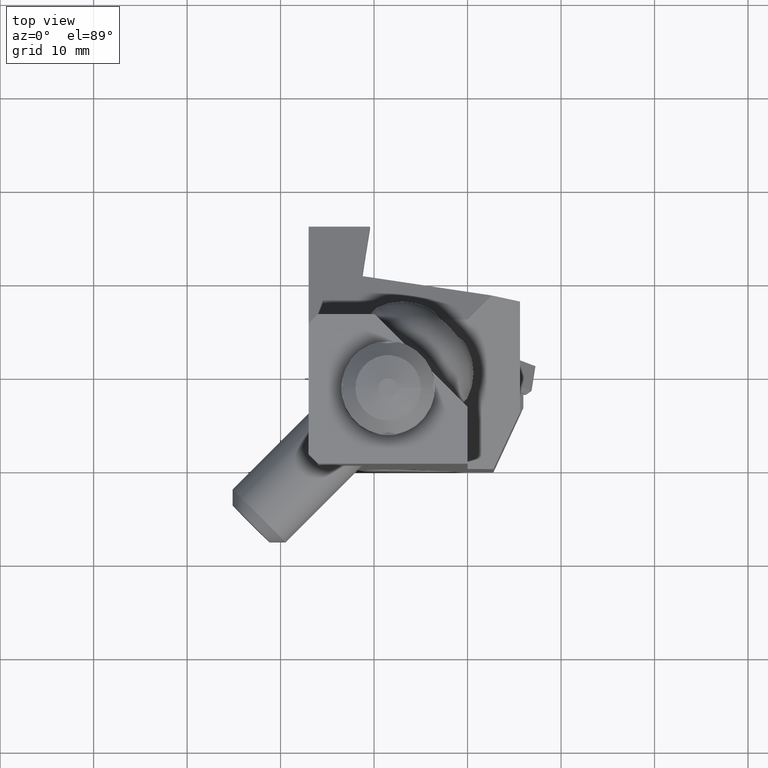
[diagram: clean part render]
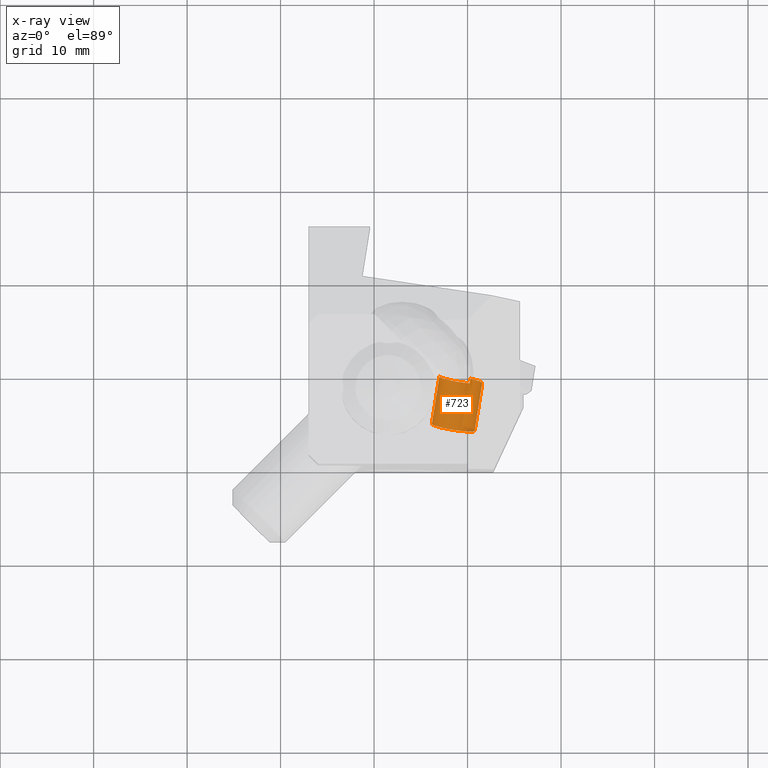
[diagram: x-ray — body ghosted, one internal face saturated and labeled with its STEP entity id]
A machine part, top view, then the same camera in x-ray: the body is ghosted and one INTERNAL B-rep face — a face not visible from any outside direction — is saturated and labeled: STEP entity #723.
In plain terms, the highlighted cylindrical surface (edge-blend (fillet) strip) has radius 2.325 mm, axis along (-0.1556, -0.9824, 0.1033).
Its self-contained STEP definition (entity closure, byte-faithful):
#232=CYLINDRICAL_SURFACE('',#4315,2.325000000001);
#312=FACE_OUTER_BOUND('',#1107,.T.);
#526=CIRCLE('',#4312,2.325000000001);
#527=CIRCLE('',#4314,2.325000000001);
#723=ADVANCED_FACE('',(#312),#232,.F.);
#1107=EDGE_LOOP('',(#1532,#1533,#1534,#1535));
#1532=ORIENTED_EDGE('',*,*,#3017,.T.);
#1533=ORIENTED_EDGE('',*,*,#3016,.T.);
#1534=ORIENTED_EDGE('',*,*,#3018,.T.);
#1535=ORIENTED_EDGE('',*,*,#3019,.T.);
#2608=VERTEX_POINT('',#6242);
#2614=VERTEX_POINT('',#6256);
#2615=VERTEX_POINT('',#6260);
#2616=VERTEX_POINT('',#6262);
#3016=EDGE_CURVE('',#2608,#2614,#526,.T.);
#3017=EDGE_CURVE('',#2615,#2608,#3573,.T.);
#3018=EDGE_CURVE('',#2614,#2616,#3574,.T.);
#3019=EDGE_CURVE('',#2616,#2615,#527,.T.);
#3573=LINE('',#6259,#3875);
#3574=LINE('',#6261,#3876);
#3875=VECTOR('',#4942,1.);
#3876=VECTOR('',#4943,1.);
#4312=AXIS2_PLACEMENT_3D('',#6257,#4938,#4939);
#4314=AXIS2_PLACEMENT_3D('',#6263,#4944,#4945);
#4315=AXIS2_PLACEMENT_3D('',#6264,#4946,#4947);
#4938=DIRECTION('',(0.155598304244894,0.982409029106662,-0.103255349720096));
#4939=DIRECTION('',(0.433492749515681,0.0260174335926908,0.90078139926765));
#4942=DIRECTION('',(0.155598304244705,0.982409029106628,-0.103255349720703));
#4943=DIRECTION('',(-0.155598304244992,-0.982409029106552,0.103255349720995));
#4944=DIRECTION('',(-0.155598304244894,-0.982409029106662,0.103255349720096));
#4945=DIRECTION('',(-0.985806331629774,0.147758844403443,-0.0797069659390419));
#4946=DIRECTION('',(-0.155598304244894,-0.982409029106662,0.103255349720096));
#4947=DIRECTION('',(-0.0204316466012623,-0.101305404592415,-0.994645546321667));
#6242=CARTESIAN_POINT('',(0.2890016859422,9.907911461812,-47.12032410982));
#6256=CARTESIAN_POINT('',(-3.01086867775,10.19096024194,-49.39995955895));
#6257=CARTESIAN_POINT('',(-0.7188689566975,9.847420928706,-49.21464086312));
#6259=CARTESIAN_POINT('',(-0.5201094961402,4.799384510459,-46.58339629127));
#6260=CARTESIAN_POINT('',(-0.5201094961486,4.799384510456,-46.58339629128));
#6261=CARTESIAN_POINT('',(-3.01086867774,10.19096024195,-49.39995955894));
#6262=CARTESIAN_POINT('',(-3.819979859811,5.082433290591,-48.86303174038));
#6263=CARTESIAN_POINT('',(-1.527980138771,4.738893977353,-48.67771304458));
#6264=CARTESIAN_POINT('',(-0.7026867330544,9.949591467743,-49.22537941949));